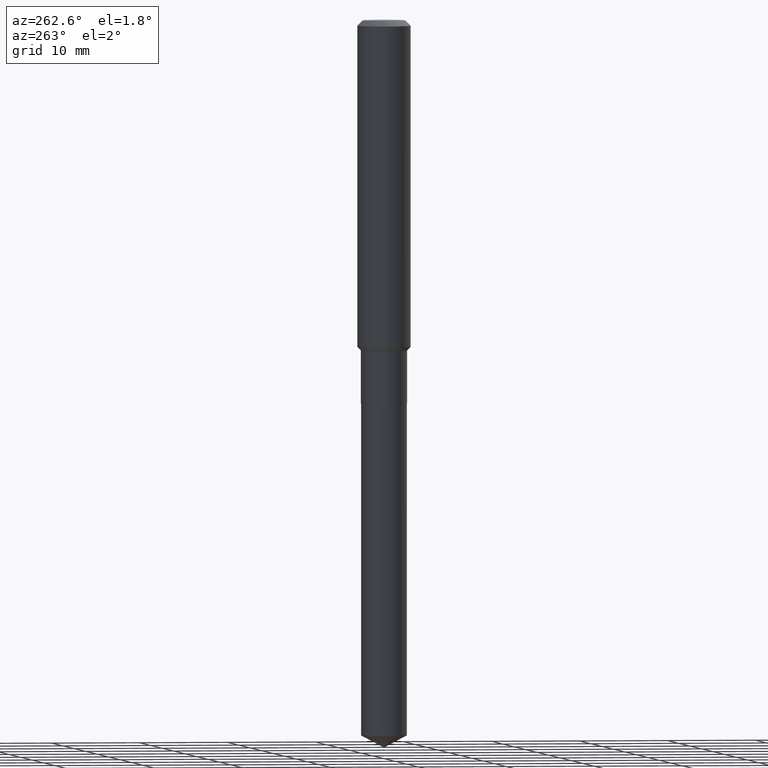
[diagram: clean part render]
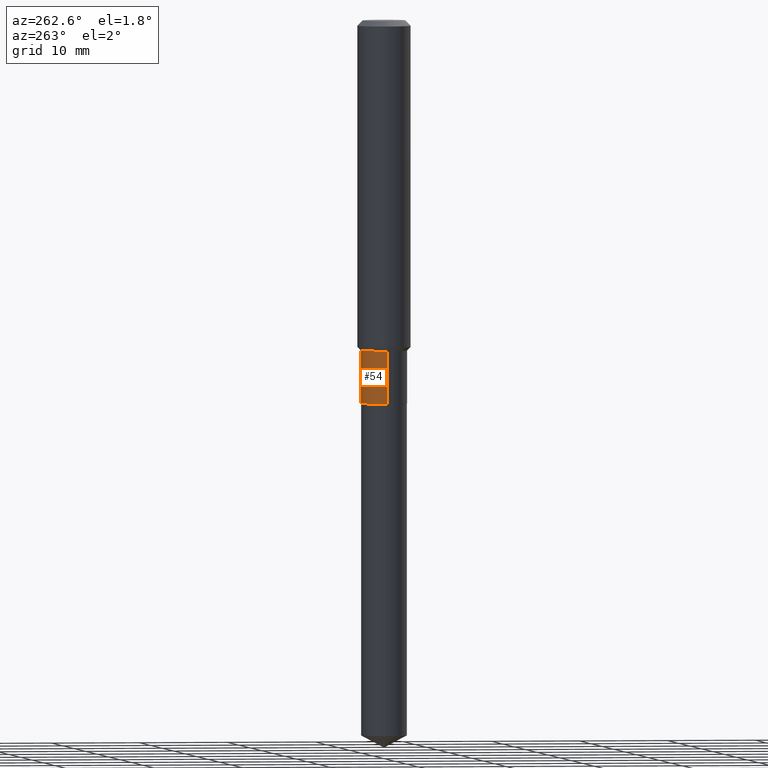
[diagram: same view with one face highlighted and labeled with its STEP entity id]
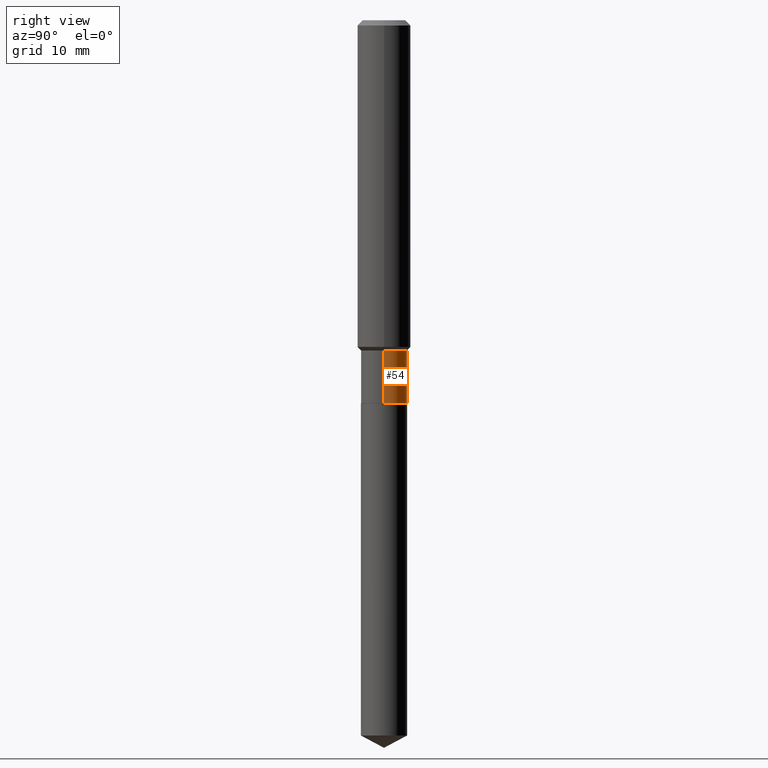
[diagram: same view with one face highlighted and labeled with its STEP entity id]
A machine part, auxiliary view. The second image highlights one B-rep face of the part: STEP entity #54.
A second angle (right view) of the same face is appended — the face is thin or edge-on in the first view.
In plain terms, the highlighted cylindrical surface (edge-blend (fillet) strip) has radius 2.5997 mm, axis along (-0, 0, 1).
Its self-contained STEP definition (entity closure, byte-faithful):
#4 = AXIS2_PLACEMENT_3D ( 'NONE', #121, #415, #123 ) ;
#17 = EDGE_LOOP ( 'NONE', ( #94, #456, #304, #286 ) ) ;
#30 = DIRECTION ( 'NONE',  ( 1.000000000000000000, -6.982962677686266711E-15, 4.876176775795936353E-29 ) ) ;
#31 = DIRECTION ( 'NONE',  ( -2.445468806185136597E-29, 3.491481338843145583E-15, 1.000000000000000000 ) ) ;
#44 = EDGE_CURVE ( 'NONE', #438, #118, #59, .T. ) ;
#54 = ADVANCED_FACE ( 'NONE', ( #436 ), #105, .T. ) ;
#59 = CIRCLE ( 'NONE', #400, 0.1023499999999999688 ) ;
#94 = ORIENTED_EDGE ( 'NONE', *, *, #402, .T. ) ;
#105 = CYLINDRICAL_SURFACE ( 'NONE', #353, 0.1023499999999999827 ) ;
#115 = VERTEX_POINT ( 'NONE', #196 ) ;
#118 = VERTEX_POINT ( 'NONE', #274 ) ;
#121 = CARTESIAN_POINT ( 'NONE',  ( 4.157786064275969447E-29, -5.936216572301116605E-15, -1.700200000000000156 ) ) ;
#123 = DIRECTION ( 'NONE',  ( 1.000000000000000000, -6.982962677686270655E-15, 0.000000000000000000 ) ) ;
#142 = DIRECTION ( 'NONE',  ( -2.445468806185136597E-29, 3.491481338843145583E-15, 1.000000000000000000 ) ) ;
#168 = VERTEX_POINT ( 'NONE', #375 ) ;
#176 = CARTESIAN_POINT ( 'NONE',  ( -0.1023499999999999827, 7.272404900504624170E-16, -5.034530064875895945E-30 ) ) ;
#196 = CARTESIAN_POINT ( 'NONE',  ( 0.1023499999999999965, -6.650922802362306198E-15, -1.700200000000000156 ) ) ;
#208 = EDGE_CURVE ( 'NONE', #168, #118, #408, .T. ) ;
#226 = DIRECTION ( 'NONE',  ( -2.445468806185136877E-29, 3.491481338843145188E-15, 1.000000000000000000 ) ) ;
#238 = LINE ( 'NONE', #487, #320 ) ;
#259 = CARTESIAN_POINT ( 'NONE',  ( 0.1023499999999999688, -5.830773835868049900E-15, -1.465300000000000047 ) ) ;
#261 = CARTESIAN_POINT ( 'NONE',  ( 0.000000000000000000, 0.000000000000000000, 0.000000000000000000 ) ) ;
#268 = VECTOR ( 'NONE', #226, 39.37007874015748143 ) ;
#274 = CARTESIAN_POINT ( 'NONE',  ( -0.1023499999999999688, -4.798901599003526335E-15, -1.465300000000000047 ) ) ;
#277 = DIRECTION ( 'NONE',  ( -2.445468806185136877E-29, 3.491481338843145188E-15, 1.000000000000000000 ) ) ;
#286 = ORIENTED_EDGE ( 'NONE', *, *, #397, .F. ) ;
#304 = ORIENTED_EDGE ( 'NONE', *, *, #44, .F. ) ;
#320 = VECTOR ( 'NONE', #277, 39.37007874015748143 ) ;
#334 = CARTESIAN_POINT ( 'NONE',  ( 3.583345441703080840E-29, -5.116067605806861096E-15, -1.465300000000000047 ) ) ;
#353 = AXIS2_PLACEMENT_3D ( 'NONE', #261, #31, #30 ) ;
#375 = CARTESIAN_POINT ( 'NONE',  ( -0.1023499999999999965, -4.798901599003526335E-15, -1.700200000000000156 ) ) ;
#397 = EDGE_CURVE ( 'NONE', #115, #438, #238, .T. ) ;
#400 = AXIS2_PLACEMENT_3D ( 'NONE', #334, #142, #471 ) ;
#402 = EDGE_CURVE ( 'NONE', #115, #168, #470, .T. ) ;
#408 = LINE ( 'NONE', #176, #268 ) ;
#415 = DIRECTION ( 'NONE',  ( -2.445468806185136597E-29, 3.491481338843145583E-15, 1.000000000000000000 ) ) ;
#436 = FACE_OUTER_BOUND ( 'NONE', #17, .T. ) ;
#438 = VERTEX_POINT ( 'NONE', #259 ) ;
#456 = ORIENTED_EDGE ( 'NONE', *, *, #208, .T. ) ;
#470 = CIRCLE ( 'NONE', #4, 0.1023499999999999965 ) ;
#471 = DIRECTION ( 'NONE',  ( 1.000000000000000000, -6.982962677686262766E-15, 0.000000000000000000 ) ) ;
#487 = CARTESIAN_POINT ( 'NONE',  ( 0.1023499999999999827, -7.147062300611892976E-16, 4.990766930027139796E-30 ) ) ;